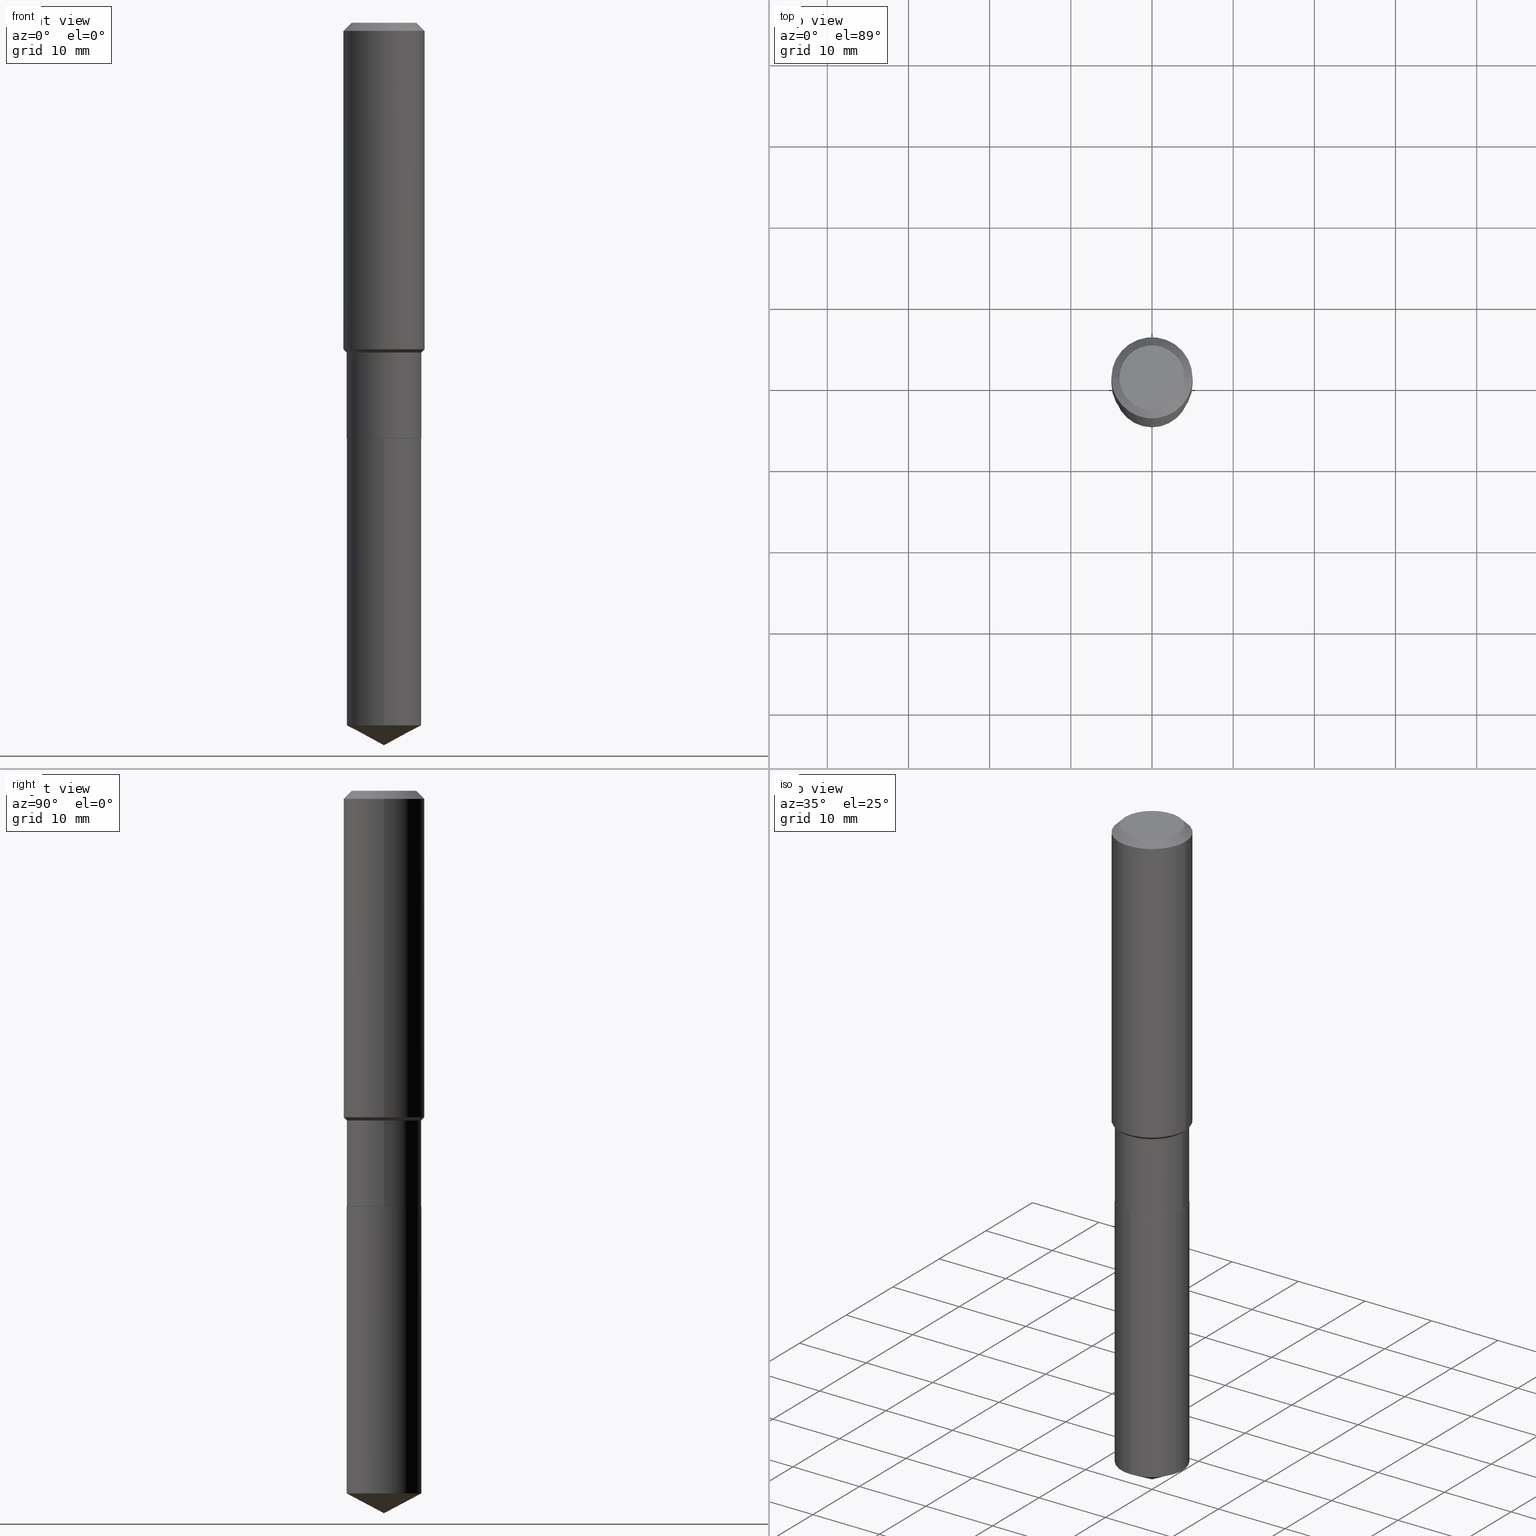
[diagram: canonical four-view strip — front | top / right | iso, engineering-drawing reading convention]
A machine part, canonical four-view strip (front | top / right | iso — engineering-drawing reading convention). The complete STEP part file that produces these views, byte-faithful:
ISO-10303-21;
HEADER;
FILE_DESCRIPTION (( 'STEP AP203' ),
    '1' );
FILE_NAME ('67662.STEP',
    '2024-04-25T08:41:14',
    ( '' ),
    ( '' ),
    'SwSTEP 2.0',
    'SolidWorks 2023',
    '' );
FILE_SCHEMA (( 'CONFIG_CONTROL_DESIGN' ));
ENDSEC;

DATA;
#1 = DATE_AND_TIME ( #35, #362 ) ;
#2 = CARTESIAN_POINT ( 'NONE',  ( 4.929331472627378640E-29, -7.037778934706127166E-15, -2.015699999999999381 ) ) ;
#3 = DIRECTION ( 'NONE',  ( 2.438088387897960049E-29, -3.491481338843145188E-15, -1.000000000000000000 ) ) ;
#4 = AXIS2_PLACEMENT_3D ( 'NONE', #91, #469, #244 ) ;
#5 = FACE_OUTER_BOUND ( 'NONE', #473, .T. ) ;
#6 = PERSON_AND_ORGANIZATION ( #70, #223 ) ;
#7 = CARTESIAN_POINT ( 'NONE',  ( 3.872277581153853552E-29, -5.528586125991177772E-15, -1.583449999999999580 ) ) ;
#8 = DIRECTION ( 'NONE',  ( 1.000000000000000000, -6.982962677686265922E-15, 0.000000000000000000 ) ) ;
#9 = DIRECTION ( 'NONE',  ( 1.000000000000000000, -6.982962677686263555E-15, 0.000000000000000000 ) ) ;
#10 = FACE_OUTER_BOUND ( 'NONE', #206, .T. ) ;
#11 = CIRCLE ( 'NONE', #209, 0.1574800000000000089 ) ;
#12 = CARTESIAN_POINT ( 'NONE',  ( 4.929331472627379200E-29, -7.037778934706127955E-15, -2.015699999999999825 ) ) ;
#13 = CIRCLE ( 'NONE', #32, 0.1810999999999999832 ) ;
#14 = DIRECTION ( 'NONE',  ( -2.445468806185136597E-29, 3.491481338843145583E-15, 1.000000000000000000 ) ) ;
#15 = ORIENTED_EDGE ( 'NONE', *, *, #239, .F. ) ;
#16 = ADVANCED_FACE ( 'NONE', ( #30 ), #321, .T. ) ;
#17 = CARTESIAN_POINT ( 'NONE',  ( 3.910793714851269512E-29, -5.583576957077957107E-15, -1.599199999999999733 ) ) ;
#18 = EDGE_CURVE ( 'NONE', #238, #369, #138, .T. ) ;
#19 = DIRECTION ( 'NONE',  ( 0.7071067811867889352, -2.468850131084785360E-15, 0.7071067811863060992 ) ) ;
#20 = DIRECTION ( 'NONE',  ( -2.445468806185136597E-29, 3.491481338843145583E-15, 1.000000000000000000 ) ) ;
#21 = CLOSED_SHELL ( 'NONE', ( #278, #341, #212, #328, #468, #346, #113, #274, #16, #203, #139, #233 ) ) ;
#22 = CIRCLE ( 'NONE', #290, 0.1968500000000000250 ) ;
#23 = PRODUCT_DEFINITION ( 'UNKNOWN', '', #192, #488 ) ;
#24 = ORIENTED_EDGE ( 'NONE', *, *, #86, .F. ) ;
#25 = VERTEX_POINT ( 'NONE', #64 ) ;
#26 = VECTOR ( 'NONE', #466, 39.37007874015748854 ) ;
#27 = ORIENTED_EDGE ( 'NONE', *, *, #287, .F. ) ;
#28 = ORIENTED_EDGE ( 'NONE', *, *, #490, .F. ) ;
#29 = EDGE_CURVE ( 'NONE', #369, #291, #222, .T. ) ;
#30 = FACE_OUTER_BOUND ( 'NONE', #366, .T. ) ;
#31 = ORIENTED_EDGE ( 'NONE', *, *, #355, .T. ) ;
#32 = AXIS2_PLACEMENT_3D ( 'NONE', #304, #343, #461 ) ;
#33 = ADVANCED_FACE ( 'NONE', ( #10 ), #265, .T. ) ;
#34 = PLANE ( 'NONE',  #334 ) ;
#35 = CALENDAR_DATE ( 2024, 25, 4 ) ;
#36 = UNCERTAINTY_MEASURE_WITH_UNIT (LENGTH_MEASURE( 1.000000000000000082E-05 ), #452, 'distance_accuracy_value', 'NONE');
#37 = CARTESIAN_POINT ( 'NONE',  ( 1.286792894461624739E-15, 0.1810999999999929888, -2.015700000000000269 ) ) ;
#38 = DIRECTION ( 'NONE',  ( 1.000000000000000000, -6.982962677686265922E-15, 0.000000000000000000 ) ) ;
#39 =( NAMED_UNIT ( * ) PLANE_ANGLE_UNIT ( ) SI_UNIT ( $, .RADIAN. ) );
#40 = LINE ( 'NONE', #314, #322 ) ;
#41 = DIRECTION ( 'NONE',  ( -2.438088387897960049E-29, 3.491481338843145188E-15, 1.000000000000000000 ) ) ;
#42 = VECTOR ( 'NONE', #425, 39.37007874015748143 ) ;
#43 = CONICAL_SURFACE ( 'NONE', #90, 0.1968500000000000250, 0.7853981633974447263 ) ;
#44 = DIRECTION ( 'NONE',  ( -2.445517173023841322E-29, 3.491412074777250618E-15, 1.000000000000000000 ) ) ;
#45 = CARTESIAN_POINT ( 'NONE',  ( 4.929331472627379200E-29, -7.037778934706127955E-15, -2.015699999999999825 ) ) ;
#46 = LINE ( 'NONE', #270, #301 ) ;
#47 = DIRECTION ( 'NONE',  ( 1.000000000000000000, -6.982962677686265922E-15, 0.000000000000000000 ) ) ;
#48 = CARTESIAN_POINT ( 'NONE',  ( -0.1806000000000000105, -5.751889526749275152E-15, -2.015699999999999381 ) ) ;
#49 = AXIS2_PLACEMENT_3D ( 'NONE', #12, #44, #228 ) ;
#50 = LINE ( 'NONE', #430, #327 ) ;
#51 = ORIENTED_EDGE ( 'NONE', *, *, #187, .T. ) ;
#52 = DIRECTION ( 'NONE',  ( -2.445468806185136597E-29, 3.491481338843145583E-15, 1.000000000000000000 ) ) ;
#53 = ORIENTED_EDGE ( 'NONE', *, *, #402, .F. ) ;
#54 = ORIENTED_EDGE ( 'NONE', *, *, #262, .T. ) ;
#55 = VERTEX_POINT ( 'NONE', #348 ) ;
#56 = APPROVAL_DATE_TIME ( #288, #404 ) ;
#57 = EDGE_CURVE ( 'NONE', #213, #336, #11, .T. ) ;
#58 = VERTEX_POINT ( 'NONE', #450 ) ;
#59 = VECTOR ( 'NONE', #205, 39.37007874015748143 ) ;
#60 = ORIENTED_EDGE ( 'NONE', *, *, #29, .T. ) ;
#61 = AXIS2_PLACEMENT_3D ( 'NONE', #2, #276, #196 ) ;
#62 = EDGE_LOOP ( 'NONE', ( #131, #482, #127, #142 ) ) ;
#63 = DATE_TIME_ROLE ( 'classification_date' ) ;
#64 = CARTESIAN_POINT ( 'NONE',  ( -0.1810999999999999832, -5.023012181095790067E-15, -1.599199999999999733 ) ) ;
#65 = CC_DESIGN_PERSON_AND_ORGANIZATION_ASSIGNMENT ( #221, #135, ( #478 ) ) ;
#66 = DIRECTION ( 'NONE',  ( -2.445468806185136597E-29, 3.491481338843145583E-15, 1.000000000000000000 ) ) ;
#67 = AXIS2_PLACEMENT_3D ( 'NONE', #174, #330, #295 ) ;
#68 = APPROVAL_PERSON_ORGANIZATION ( #299, #404, #73 ) ;
#69 = DATE_AND_TIME ( #261, #111 ) ;
#70 = PERSON ( 'UNSPECIFIED', 'UNSPECIFIED', 'UNSPECIFIED', ('UNSPECIFIED'), ('UNSPECIFIED'), ('UNSPECIFIED') ) ;
#71 = DIRECTION ( 'NONE',  ( -2.445468806185136597E-29, 3.491481338843145583E-15, 1.000000000000000000 ) ) ;
#72 = DIRECTION ( 'NONE',  ( -2.445468806185136597E-29, 3.491481338843145583E-15, 1.000000000000000000 ) ) ;
#73 = APPROVAL_ROLE ( '' ) ;
#74 = DIRECTION ( 'NONE',  ( -2.445468806185136877E-29, 3.491481338843145188E-15, 1.000000000000000000 ) ) ;
#75 = FACE_OUTER_BOUND ( 'NONE', #220, .T. ) ;
#76 = DIRECTION ( 'NONE',  ( 1.000000000000000000, 0.000000000000000000, 0.000000000000000000 ) ) ;
#77 = DIRECTION ( 'NONE',  ( 6.982962677686265922E-15, 1.000000000000000000, -3.491412074777250618E-15 ) ) ;
#78 = FACE_OUTER_BOUND ( 'NONE', #481, .T. ) ;
#79 = DATE_AND_TIME ( #154, #103 ) ;
#80 = VECTOR ( 'NONE', #226, 39.37007874015748143 ) ;
#81 = FACE_OUTER_BOUND ( 'NONE', #318, .T. ) ;
#82 = DIRECTION ( 'NONE',  ( 1.000000000000000000, -6.982962677686265922E-15, 0.000000000000000000 ) ) ;
#83 = PERSON_AND_ORGANIZATION_ROLE ( 'design_owner' ) ;
#84 = CARTESIAN_POINT ( 'NONE',  ( 0.1574800000000000089, -1.284169937930321189E-15, 3.855188123724205385E-18 ) ) ;
#85 = DIRECTION ( 'NONE',  ( 1.000000000000000000, -6.982962677686265922E-15, 4.876223630392693006E-29 ) ) ;
#86 = EDGE_CURVE ( 'NONE', #93, #88, #344, .T. ) ;
#87 = CARTESIAN_POINT ( 'NONE',  ( 4.929331472627378640E-29, -7.037778934706127166E-15, -2.015699999999999381 ) ) ;
#88 = VERTEX_POINT ( 'NONE', #345 ) ;
#89 = AXIS2_PLACEMENT_3D ( 'NONE', #315, #14, #126 ) ;
#90 = AXIS2_PLACEMENT_3D ( 'NONE', #184, #300, #347 ) ;
#91 = CARTESIAN_POINT ( 'NONE',  ( 0.000000000000000000, 0.000000000000000000, 0.000000000000000000 ) ) ;
#92 = EDGE_LOOP ( 'NONE', ( #405, #247, #412, #410 ) ) ;
#93 = VERTEX_POINT ( 'NONE', #197 ) ;
#94 = ADVANCED_FACE ( 'NONE', ( #421 ), #446, .T. ) ;
#95 = AXIS2_PLACEMENT_3D ( 'NONE', #386, #71, #116 ) ;
#96 = ORIENTED_EDGE ( 'NONE', *, *, #417, .F. ) ;
#97 = EDGE_CURVE ( 'NONE', #98, #58, #257, .T. ) ;
#98 = VERTEX_POINT ( 'NONE', #375 ) ;
#99 = EDGE_CURVE ( 'NONE', #369, #238, #121, .T. ) ;
#100 = EDGE_LOOP ( 'NONE', ( #472, #176, #96, #370 ) ) ;
#101 = DATE_AND_TIME ( #444, #393 ) ;
#102 = ORIENTED_EDGE ( 'NONE', *, *, #449, .T. ) ;
#103 = LOCAL_TIME ( 4, 41, 14.00000000000000000, #309 ) ;
#104 = DIRECTION ( 'NONE',  ( -2.445517173023841322E-29, 3.491412074777250618E-15, 1.000000000000000000 ) ) ;
#105 = CC_DESIGN_PERSON_AND_ORGANIZATION_ASSIGNMENT ( #193, #83, ( #253 ) ) ;
#106 = CARTESIAN_POINT ( 'NONE',  ( 8.333264976207015123E-29, -1.189750131459101143E-14, -3.407607421926106994 ) ) ;
#107 = APPROVAL_ROLE ( '' ) ;
#108 = COORDINATED_UNIVERSAL_TIME_OFFSET ( 5, 0, .BEHIND. ) ;
#109 = CARTESIAN_POINT ( 'NONE',  ( 4.929331472627378640E-29, -7.037778934706127166E-15, -2.015699999999999381 ) ) ;
#110 = CARTESIAN_POINT ( 'NONE',  ( -4.713871149261283817E-47, 6.730158695841841775E-33, 1.927594061857935365E-18 ) ) ;
#111 = LOCAL_TIME ( 4, 41, 14.00000000000000000, #108 ) ;
#112 = DIRECTION ( 'NONE',  ( -6.982962677686266711E-15, -1.000000000000000000, 3.016949744521549444E-15 ) ) ;
#113 = ADVANCED_FACE ( 'NONE', ( #418 ), #400, .T. ) ;
#114 = FACE_OUTER_BOUND ( 'NONE', #100, .T. ) ;
#115 = PERSON_AND_ORGANIZATION ( #70, #223 ) ;
#116 = DIRECTION ( 'NONE',  ( 1.000000000000000000, -6.982962677686266711E-15, 4.876176775795935793E-29 ) ) ;
#117 = LINE ( 'NONE', #387, #42 ) ;
#118 = FACE_OUTER_BOUND ( 'NONE', #397, .T. ) ;
#119 = DIRECTION ( 'NONE',  ( -2.445468806185136597E-29, 3.491481338843145583E-15, 1.000000000000000000 ) ) ;
#120 = EDGE_LOOP ( 'NONE', ( #437, #54, #280, #136 ) ) ;
#121 = CIRCLE ( 'NONE', #283, 0.1811000000000000110 ) ;
#122 = APPROVAL_PERSON_ORGANIZATION ( #6, #428, #487 ) ;
#123 = PLANE ( 'NONE',  #427 ) ;
#124 = CARTESIAN_POINT ( 'NONE',  ( 4.929331472627378640E-29, -7.037778934706127166E-15, -2.015699999999999381 ) ) ;
#125 = APPROVAL ( #407, 'UNSPECIFIED' ) ;
#126 = DIRECTION ( 'NONE',  ( 1.000000000000000000, -6.982962677686266711E-15, 4.876176775795935793E-29 ) ) ;
#127 = ORIENTED_EDGE ( 'NONE', *, *, #145, .T. ) ;
#128 = CARTESIAN_POINT ( 'NONE',  ( 3.872277581153853552E-29, -5.528586125991177772E-15, -1.583449999999999580 ) ) ;
#129 = FACE_OUTER_BOUND ( 'NONE', #391, .T. ) ;
#130 = CC_DESIGN_APPROVAL ( #428, ( #23 ) ) ;
#131 = ORIENTED_EDGE ( 'NONE', *, *, #163, .F. ) ;
#132 = LOCAL_TIME ( 4, 41, 14.00000000000000000, #459 ) ;
#133 = ORIENTED_EDGE ( 'NONE', *, *, #254, .T. ) ;
#134 = ORIENTED_EDGE ( 'NONE', *, *, #371, .F. ) ;
#135 = PERSON_AND_ORGANIZATION_ROLE ( 'classification_officer' ) ;
#136 = ORIENTED_EDGE ( 'NONE', *, *, #486, .F. ) ;
#137 = CALENDAR_DATE ( 2024, 25, 4 ) ;
#138 = CIRCLE ( 'NONE', #166, 0.1811000000000000110 ) ;
#139 = ADVANCED_FACE ( 'NONE', ( #75 ), #34, .F. ) ;
#140 = ORIENTED_EDGE ( 'NONE', *, *, #382, .T. ) ;
#141 = AXIS2_PLACEMENT_3D ( 'NONE', #429, #426, #188 ) ;
#142 = ORIENTED_EDGE ( 'NONE', *, *, #262, .F. ) ;
#143 = APPROVAL_STATUS ( 'not_yet_approved' ) ;
#144 = DIRECTION ( 'NONE',  ( -2.445517173023841322E-29, 3.491412074777250618E-15, 1.000000000000000000 ) ) ;
#145 = EDGE_CURVE ( 'NONE', #443, #219, #117, .T. ) ;
#146 = DATE_TIME_ROLE ( 'creation_date' ) ;
#147 = DIRECTION ( 'NONE',  ( 2.445517173023841322E-29, -3.491412074777250618E-15, -1.000000000000000000 ) ) ;
#148 = DIRECTION ( 'NONE',  ( -2.445468806185136877E-29, 3.491481338843145188E-15, 1.000000000000000000 ) ) ;
#149 = AXIS2_PLACEMENT_3D ( 'NONE', #164, #20, #439 ) ;
#150 = DIRECTION ( 'NONE',  ( 0.7071067811865474617, -2.468850131082256666E-15, 0.7071067811865474617 ) ) ;
#151 = CARTESIAN_POINT ( 'NONE',  ( -8.771145353283449829E-28, 1.252234699139273128E-13, 35.86617874015747987 ) ) ;
#152 = FACE_OUTER_BOUND ( 'NONE', #62, .T. ) ;
#153 = DIRECTION ( 'NONE',  ( 1.000000000000000000, -6.982962677686267499E-15, 0.000000000000000000 ) ) ;
#154 = CALENDAR_DATE ( 2024, 25, 4 ) ;
#155 = CARTESIAN_POINT ( 'NONE',  ( 9.627810689950954155E-31, -1.374596203102556547E-16, -0.03937000000000029365 ) ) ;
#156 = FACE_OUTER_BOUND ( 'NONE', #255, .T. ) ;
#157 = CC_DESIGN_DATE_AND_TIME_ASSIGNMENT ( #1, #146, ( #23 ) ) ;
#158 =( GEOMETRIC_REPRESENTATION_CONTEXT ( 3 ) GLOBAL_UNCERTAINTY_ASSIGNED_CONTEXT ( ( #36 ) ) GLOBAL_UNIT_ASSIGNED_CONTEXT ( ( #452, #39, #388 ) ) REPRESENTATION_CONTEXT ( 'NONE', 'WORKASPACE' ) );
#159 = CARTESIAN_POINT ( 'NONE',  ( -1.264614540928933635E-15, -0.1811000000000070609, -2.015699999999999381 ) ) ;
#160 = LINE ( 'NONE', #317, #26 ) ;
#161 = CYLINDRICAL_SURFACE ( 'NONE', #4, 0.1968500000000001082 ) ;
#162 = ORIENTED_EDGE ( 'NONE', *, *, #57, .T. ) ;
#163 = EDGE_CURVE ( 'NONE', #208, #25, #46, .T. ) ;
#164 = CARTESIAN_POINT ( 'NONE',  ( 0.000000000000000000, 0.000000000000000000, 0.000000000000000000 ) ) ;
#165 = CARTESIAN_POINT ( 'NONE',  ( -1.264614540928933635E-15, -0.1811000000000070609, -2.015699999999999381 ) ) ;
#166 = AXIS2_PLACEMENT_3D ( 'NONE', #448, #104, #259 ) ;
#167 = AXIS2_PLACEMENT_3D ( 'NONE', #109, #349, #9 ) ;
#168 = PRODUCT_RELATED_PRODUCT_CATEGORY ( 'detail', '', ( #253 ) ) ;
#169 = ORIENTED_EDGE ( 'NONE', *, *, #355, .F. ) ;
#170 = ORIENTED_EDGE ( 'NONE', *, *, #486, .T. ) ;
#171 = EDGE_CURVE ( 'NONE', #219, #25, #414, .T. ) ;
#172 = CONICAL_SURFACE ( 'NONE', #242, 0.1806000000000000105, 0.7853981633977896726 ) ;
#173 = APPROVAL_PERSON_ORGANIZATION ( #256, #125, #107 ) ;
#174 = CARTESIAN_POINT ( 'NONE',  ( 9.627810689950954155E-31, -1.374596203102556547E-16, -0.03937000000000029365 ) ) ;
#175 = ORIENTED_EDGE ( 'NONE', *, *, #245, .F. ) ;
#176 = ORIENTED_EDGE ( 'NONE', *, *, #239, .T. ) ;
#177 = AXIS2_PLACEMENT_3D ( 'NONE', #272, #119, #189 ) ;
#178 = DIRECTION ( 'NONE',  ( -2.445517173023841322E-29, 3.491412074777250618E-15, 1.000000000000000000 ) ) ;
#179 = CONICAL_SURFACE ( 'NONE', #141, 0.1810999999999999832, 0.7853981633974482790 ) ;
#180 = DIRECTION ( 'NONE',  ( 0.000000000000000000, 0.000000000000000000, 1.000000000000000000 ) ) ;
#181 = DIRECTION ( 'NONE',  ( -6.982962677686266711E-15, -1.000000000000000000, 3.016949744521549444E-15 ) ) ;
#182 = ADVANCED_FACE ( 'NONE', ( #186 ), #454, .T. ) ;
#183 = MANIFOLD_SOLID_BREP ( 'Body-Move/Copy2[2]', #21 ) ;
#184 = CARTESIAN_POINT ( 'NONE',  ( 9.627810689950954155E-31, -1.374596203102556547E-16, -0.03937000000000029365 ) ) ;
#185 = PRODUCT_DEFINITION_SHAPE ( 'NONE', 'NONE',  #23 ) ;
#186 = FACE_OUTER_BOUND ( 'NONE', #246, .T. ) ;
#187 = EDGE_CURVE ( 'NONE', #291, #285, #373, .T. ) ;
#188 = DIRECTION ( 'NONE',  ( 1.000000000000000000, -6.982962677686267499E-15, 0.000000000000000000 ) ) ;
#189 = DIRECTION ( 'NONE',  ( 1.000000000000000000, -6.982962677686267499E-15, 0.000000000000000000 ) ) ;
#190 = CLOSED_SHELL ( 'NONE', ( #297, #94, #182, #33, #292 ) ) ;
#191 = APPROVAL_DATE_TIME ( #79, #125 ) ;
#192 = PRODUCT_DEFINITION_FORMATION_WITH_SPECIFIED_SOURCE ( 'ANY', '', #253, .NOT_KNOWN. ) ;
#193 = PERSON_AND_ORGANIZATION ( #70, #223 ) ;
#194 = CYLINDRICAL_SURFACE ( 'NONE', #95, 0.1810999999999999832 ) ;
#195 = CARTESIAN_POINT ( 'NONE',  ( 9.627810689950954155E-31, -1.374596203102556547E-16, -0.03937000000000029365 ) ) ;
#196 = DIRECTION ( 'NONE',  ( 1.000000000000000000, -6.982962677686263555E-15, 0.000000000000000000 ) ) ;
#197 = CARTESIAN_POINT ( 'NONE',  ( -0.1968500000000000250, -1.434319497806958297E-15, -0.03937000000000029365 ) ) ;
#198 = LINE ( 'NONE', #351, #312 ) ;
#199 = DIRECTION ( 'NONE',  ( -2.445468806185136597E-29, 3.491481338843145583E-15, 1.000000000000000000 ) ) ;
#200 = AXIS2_PLACEMENT_3D ( 'NONE', #151, #234, #227 ) ;
#201 = DIRECTION ( 'NONE',  ( -2.445468806185136597E-29, 3.491481338843145583E-15, 1.000000000000000000 ) ) ;
#202 = ORIENTED_EDGE ( 'NONE', *, *, #97, .F. ) ;
#203 = ADVANCED_FACE ( 'NONE', ( #78 ), #298, .F. ) ;
#204 = MANIFOLD_SOLID_BREP ( 'Body-Move/Copy2[1]', #190 ) ;
#205 = DIRECTION ( 'NONE',  ( 0.7071067811865450192, -7.319954787623246579E-15, -0.7071067811865500152 ) ) ;
#206 = EDGE_LOOP ( 'NONE', ( #294, #432, #31, #333 ) ) ;
#207 = CC_DESIGN_PERSON_AND_ORGANIZATION_ASSIGNMENT ( #115, #376, ( #23 ) ) ;
#208 = VERTEX_POINT ( 'NONE', #229 ) ;
#209 = AXIS2_PLACEMENT_3D ( 'NONE', #308, #385, #338 ) ;
#210 = AXIS2_PLACEMENT_3D ( 'NONE', #124, #237, #279 ) ;
#211 = ORIENTED_EDGE ( 'NONE', *, *, #250, .T. ) ;
#212 = ADVANCED_FACE ( 'NONE', ( #114 ), #381, .T. ) ;
#213 = VERTEX_POINT ( 'NONE', #311 ) ;
#214 = PERSON_AND_ORGANIZATION_ROLE ( 'design_supplier' ) ;
#215 = ORIENTED_EDGE ( 'NONE', *, *, #171, .F. ) ;
#216 = PERSON_AND_ORGANIZATION ( #70, #223 ) ;
#217 = APPLICATION_CONTEXT ( 'configuration controlled 3d designs of mechanical parts and assemblies' ) ;
#218 = AXIS2_PLACEMENT_3D ( 'NONE', #377, #339, #112 ) ;
#219 = VERTEX_POINT ( 'NONE', #392 ) ;
#220 = EDGE_LOOP ( 'NONE', ( #53, #134 ) ) ;
#221 = PERSON_AND_ORGANIZATION ( #70, #223 ) ;
#222 = LINE ( 'NONE', #372, #289 ) ;
#223 = ORGANIZATION ( 'UNSPECIFIED', 'UNSPECIFIED', '' ) ;
#224 = DIRECTION ( 'NONE',  ( -2.445517173023841322E-29, 3.491412074777250618E-15, 1.000000000000000000 ) ) ;
#225 = APPROVAL_DATE_TIME ( #69, #428 ) ;
#226 = DIRECTION ( 'NONE',  ( -2.445517173023841322E-29, 3.491412074777250618E-15, 1.000000000000000000 ) ) ;
#227 = DIRECTION ( 'NONE',  ( -6.982962677686267499E-15, -1.000000000000000000, 3.541896320645546669E-15 ) ) ;
#228 = DIRECTION ( 'NONE',  ( -6.982962677686266711E-15, -1.000000000000000000, 3.016949744521549444E-15 ) ) ;
#229 = CARTESIAN_POINT ( 'NONE',  ( -0.1810999999999999832, -5.023012181095790067E-15, -2.015199999999999658 ) ) ;
#230 = LENGTH_MEASURE_WITH_UNIT ( LENGTH_MEASURE( 0.02539999999999999897 ), #415 );
#231 = CARTESIAN_POINT ( 'NONE',  ( 8.568847622558238161E-29, -1.223355876881201035E-14, -3.503899999999999793 ) ) ;
#232 = CIRCLE ( 'NONE', #243, 0.1810999999999999832 ) ;
#233 = ADVANCED_FACE ( 'NONE', ( #129 ), #172, .T. ) ;
#234 = DIRECTION ( 'NONE',  ( -2.445517173023841322E-29, 3.491412074777250618E-15, 1.000000000000000000 ) ) ;
#235 = CARTESIAN_POINT ( 'NONE',  ( 0.000000000000000000, 0.000000000000000000, 0.000000000000000000 ) ) ;
#236 = LINE ( 'NONE', #159, #80 ) ;
#237 = DIRECTION ( 'NONE',  ( -2.445468806185136597E-29, 3.491481338843145583E-15, 1.000000000000000000 ) ) ;
#238 = VERTEX_POINT ( 'NONE', #282 ) ;
#239 = EDGE_CURVE ( 'NONE', #58, #93, #50, .T. ) ;
#240 = DIRECTION ( 'NONE',  ( 1.000000000000000000, -6.982962677686267499E-15, 0.000000000000000000 ) ) ;
#241 = ORIENTED_EDGE ( 'NONE', *, *, #417, .T. ) ;
#242 = AXIS2_PLACEMENT_3D ( 'NONE', #87, #52, #435 ) ;
#243 = AXIS2_PLACEMENT_3D ( 'NONE', #17, #199, #240 ) ;
#244 = DIRECTION ( 'NONE',  ( 1.000000000000000000, -6.982962677686266711E-15, 4.876176775795935793E-29 ) ) ;
#245 = EDGE_CURVE ( 'NONE', #293, #238, #160, .T. ) ;
#246 = EDGE_LOOP ( 'NONE', ( #479, #363, #286 ) ) ;
#247 = ORIENTED_EDGE ( 'NONE', *, *, #451, .T. ) ;
#248 = AXIS2_PLACEMENT_3D ( 'NONE', #413, #144, #458 ) ;
#249 = VECTOR ( 'NONE', #19, 39.37007874015748143 ) ;
#250 = EDGE_CURVE ( 'NONE', #336, #88, #319, .T. ) ;
#251 = VERTEX_POINT ( 'NONE', #48 ) ;
#252 = ORIENTED_EDGE ( 'NONE', *, *, #434, .T. ) ;
#253 = PRODUCT ( '67662', '67662', '', ( #306 ) ) ;
#254 = EDGE_CURVE ( 'NONE', #336, #213, #273, .T. ) ;
#255 = EDGE_LOOP ( 'NONE', ( #15, #170, #252, #24 ) ) ;
#256 = PERSON_AND_ORGANIZATION ( #70, #223 ) ;
#257 = CIRCLE ( 'NONE', #483, 0.1968500000000002192 ) ;
#258 = ORIENTED_EDGE ( 'NONE', *, *, #438, .T. ) ;
#259 = DIRECTION ( 'NONE',  ( -6.982962677686266711E-15, -1.000000000000000000, 3.016949744521549444E-15 ) ) ;
#260 = DIRECTION ( 'NONE',  ( -2.445468806185136597E-29, 3.491481338843145583E-15, 1.000000000000000000 ) ) ;
#261 = CALENDAR_DATE ( 2024, 25, 4 ) ;
#262 = EDGE_CURVE ( 'NONE', #25, #219, #232, .T. ) ;
#263 = DIRECTION ( 'NONE',  ( 6.273719981627770810E-15, 0.8829475928589304301, 0.4694715627858842000 ) ) ;
#264 = AXIS2_PLACEMENT_3D ( 'NONE', #356, #201, #85 ) ;
#265 = CYLINDRICAL_SURFACE ( 'NONE', #433, 0.1811000000000000110 ) ;
#266 = APPLICATION_PROTOCOL_DEFINITION ( 'international standard', 'config_control_design', 1994, #217 ) ;
#267 = LINE ( 'NONE', #420, #329 ) ;
#268 = CARTESIAN_POINT ( 'NONE',  ( 4.929331472627379200E-29, -7.037778934706127955E-15, -2.015699999999999825 ) ) ;
#269 = CYLINDRICAL_SURFACE ( 'NONE', #49, 0.1811000000000000110 ) ;
#270 = CARTESIAN_POINT ( 'NONE',  ( -0.1810999999999999832, 1.286792894461541317E-15, -8.908191448451633036E-30 ) ) ;
#271 = CARTESIAN_POINT ( 'NONE',  ( -0.1810999999999999832, -4.296784062616415395E-15, -1.599199999999999733 ) ) ;
#272 = CARTESIAN_POINT ( 'NONE',  ( 3.910793714851269512E-29, -5.583576957077957107E-15, -1.599199999999999733 ) ) ;
#273 = CIRCLE ( 'NONE', #264, 0.1574800000000000089 ) ;
#274 = ADVANCED_FACE ( 'NONE', ( #156 ), #161, .T. ) ;
#275 = CARTESIAN_POINT ( 'NONE',  ( 4.928108738224286960E-29, -7.036033194036706451E-15, -2.015199999999999658 ) ) ;
#276 = DIRECTION ( 'NONE',  ( -2.445468806185136597E-29, 3.491481338843145583E-15, 1.000000000000000000 ) ) ;
#277 = DIRECTION ( 'NONE',  ( -0.7071067811865450192, 2.468850131082230634E-15, -0.7071067811865500152 ) ) ;
#278 = ADVANCED_FACE ( 'NONE', ( #465 ), #456, .T. ) ;
#279 = DIRECTION ( 'NONE',  ( 1.000000000000000000, -6.982962677686263555E-15, 0.000000000000000000 ) ) ;
#280 = ORIENTED_EDGE ( 'NONE', *, *, #379, .T. ) ;
#281 = EDGE_CURVE ( 'NONE', #55, #443, #358, .T. ) ;
#282 = CARTESIAN_POINT ( 'NONE',  ( -1.264614540928899714E-15, -0.1811000000000118904, -3.407607421926106106 ) ) ;
#283 = AXIS2_PLACEMENT_3D ( 'NONE', #106, #305, #350 ) ;
#284 = VECTOR ( 'NONE', #307, 39.37007874015748854 ) ;
#285 = VERTEX_POINT ( 'NONE', #165 ) ;
#286 = ORIENTED_EDGE ( 'NONE', *, *, #99, .F. ) ;
#287 = EDGE_CURVE ( 'NONE', #213, #93, #431, .T. ) ;
#288 = DATE_AND_TIME ( #137, #132 ) ;
#289 = VECTOR ( 'NONE', #178, 39.37007874015748143 ) ;
#290 = AXIS2_PLACEMENT_3D ( 'NONE', #155, #457, #47 ) ;
#291 = VERTEX_POINT ( 'NONE', #37 ) ;
#292 = ADVANCED_FACE ( 'NONE', ( #424 ), #123, .F. ) ;
#293 = VERTEX_POINT ( 'NONE', #231 ) ;
#294 = ORIENTED_EDGE ( 'NONE', *, *, #29, .F. ) ;
#295 = DIRECTION ( 'NONE',  ( -1.000000000000000000, 6.982962677686265922E-15, 0.000000000000000000 ) ) ;
#296 = DIRECTION ( 'NONE',  ( -2.445517173023841322E-29, 3.491412074777250618E-15, 1.000000000000000000 ) ) ;
#297 = ADVANCED_FACE ( 'NONE', ( #383 ), #269, .T. ) ;
#298 = PLANE ( 'NONE',  #476 ) ;
#299 = PERSON_AND_ORGANIZATION ( #70, #223 ) ;
#300 = DIRECTION ( 'NONE',  ( 2.445468806185136597E-29, -3.491481338843145583E-15, -1.000000000000000000 ) ) ;
#301 = VECTOR ( 'NONE', #148, 39.37007874015748143 ) ;
#302 = DIRECTION ( 'NONE',  ( -6.982962677686266711E-15, -1.000000000000000000, 3.016949744521549444E-15 ) ) ;
#303 = COORDINATED_UNIVERSAL_TIME_OFFSET ( 5, 0, .BEHIND. ) ;
#304 = CARTESIAN_POINT ( 'NONE',  ( 4.928108738224286960E-29, -7.036033194036706451E-15, -2.015199999999999658 ) ) ;
#305 = DIRECTION ( 'NONE',  ( -2.445517173023841322E-29, 3.491412074777250618E-15, 1.000000000000000000 ) ) ;
#306 = MECHANICAL_CONTEXT ( 'NONE', #217, 'mechanical' ) ;
#307 = DIRECTION ( 'NONE',  ( -0.7071067811865474617, 7.493145998870352582E-15, 0.7071067811865474617 ) ) ;
#308 = CARTESIAN_POINT ( 'NONE',  ( -9.427742298522567634E-47, 1.346031739168368355E-32, 3.855188123715870730E-18 ) ) ;
#309 = COORDINATED_UNIVERSAL_TIME_OFFSET ( 5, 0, .BEHIND. ) ;
#310 = LINE ( 'NONE', #464, #368 ) ;
#311 = CARTESIAN_POINT ( 'NONE',  ( -0.1574800000000000089, 1.168406772637159618E-15, 3.855188123707939751E-18 ) ) ;
#312 = VECTOR ( 'NONE', #263, 39.37007874015748143 ) ;
#313 = ADVANCED_BREP_SHAPE_REPRESENTATION ( '67662', ( #204, #183, #441 ), #158 ) ;
#314 = CARTESIAN_POINT ( 'NONE',  ( 0.1810999999999999832, -6.848191498006940046E-15, -1.599199999999999733 ) ) ;
#315 = CARTESIAN_POINT ( 'NONE',  ( 0.000000000000000000, 0.000000000000000000, 0.000000000000000000 ) ) ;
#316 = CC_DESIGN_PERSON_AND_ORGANIZATION_ASSIGNMENT ( #216, #214, ( #192 ) ) ;
#317 = CARTESIAN_POINT ( 'NONE',  ( 8.568652636484683700E-29, -1.223383799996725791E-14, -3.503899999999999793 ) ) ;
#318 = EDGE_LOOP ( 'NONE', ( #324, #211, #241, #27 ) ) ;
#319 = LINE ( 'NONE', #390, #59 ) ;
#320 = ORIENTED_EDGE ( 'NONE', *, *, #331, .T. ) ;
#321 = CONICAL_SURFACE ( 'NONE', #67, 0.1968500000000000250, 0.7853981633974447263 ) ;
#322 = VECTOR ( 'NONE', #150, 39.37007874015748854 ) ;
#323 = CC_DESIGN_SECURITY_CLASSIFICATION ( #478, ( #192 ) ) ;
#324 = ORIENTED_EDGE ( 'NONE', *, *, #254, .F. ) ;
#325 = ORIENTED_EDGE ( 'NONE', *, *, #250, .F. ) ;
#326 = APPLICATION_CONTEXT ( 'configuration controlled 3d designs of mechanical parts and assemblies' ) ;
#327 = VECTOR ( 'NONE', #396, 39.37007874015748143 ) ;
#328 = ADVANCED_FACE ( 'NONE', ( #118 ), #179, .T. ) ;
#329 = VECTOR ( 'NONE', #380, 39.37007874015748143 ) ;
#330 = DIRECTION ( 'NONE',  ( 2.445468806185136597E-29, -3.491481338843145583E-15, -1.000000000000000000 ) ) ;
#331 = EDGE_CURVE ( 'NONE', #25, #58, #460, .T. ) ;
#332 = ORIENTED_EDGE ( 'NONE', *, *, #18, .F. ) ;
#333 = ORIENTED_EDGE ( 'NONE', *, *, #187, .F. ) ;
#334 = AXIS2_PLACEMENT_3D ( 'NONE', #489, #41, #462 ) ;
#335 = CC_DESIGN_PERSON_AND_ORGANIZATION_ASSIGNMENT ( #365, #480, ( #192 ) ) ;
#336 = VERTEX_POINT ( 'NONE', #84 ) ;
#337 = APPLICATION_PROTOCOL_DEFINITION ( 'international standard', 'config_control_design', 1994, #326 ) ;
#338 = DIRECTION ( 'NONE',  ( 1.000000000000000000, -6.982962677686265922E-15, 4.876223630392693006E-29 ) ) ;
#339 = DIRECTION ( 'NONE',  ( -2.445517173023841322E-29, 3.491412074777250618E-15, 1.000000000000000000 ) ) ;
#340 = DIRECTION ( 'NONE',  ( -1.000000000000000000, 6.982962677686265922E-15, -4.876176775795935793E-29 ) ) ;
#341 = ADVANCED_FACE ( 'NONE', ( #81 ), #43, .T. ) ;
#342 = CC_DESIGN_APPROVAL ( #125, ( #478 ) ) ;
#343 = DIRECTION ( 'NONE',  ( -2.445468806185136597E-29, 3.491481338843145583E-15, 1.000000000000000000 ) ) ;
#344 = CIRCLE ( 'NONE', #398, 0.1968500000000000250 ) ;
#345 = CARTESIAN_POINT ( 'NONE',  ( 0.1968500000000000250, -1.512055823412797189E-15, -0.03937000000000029365 ) ) ;
#346 = ADVANCED_FACE ( 'NONE', ( #152 ), #194, .T. ) ;
#347 = DIRECTION ( 'NONE',  ( -1.000000000000000000, 6.982962677686265922E-15, 0.000000000000000000 ) ) ;
#348 = CARTESIAN_POINT ( 'NONE',  ( 0.1806000000000000105, -8.298901994296266309E-15, -2.015699999999999381 ) ) ;
#349 = DIRECTION ( 'NONE',  ( -2.445468806185136597E-29, 3.491481338843145583E-15, 1.000000000000000000 ) ) ;
#350 = DIRECTION ( 'NONE',  ( -6.982962677686266711E-15, -1.000000000000000000, 3.016949744521549444E-15 ) ) ;
#351 = CARTESIAN_POINT ( 'NONE',  ( 8.568849332355941581E-29, -1.223355876881200719E-14, -3.503899999999999793 ) ) ;
#352 = AXIS2_PLACEMENT_3D ( 'NONE', #453, #260, #153 ) ;
#353 = CARTESIAN_POINT ( 'NONE',  ( 0.1806000000000000105, -8.298901994296266309E-15, -2.015699999999999381 ) ) ;
#354 = AXIS2_PLACEMENT_3D ( 'NONE', #128, #395, #8 ) ;
#355 = EDGE_CURVE ( 'NONE', #238, #285, #236, .T. ) ;
#356 = CARTESIAN_POINT ( 'NONE',  ( -9.427742298522567634E-47, 1.346031739168368355E-32, 3.855188123715870730E-18 ) ) ;
#357 = ORIENTED_EDGE ( 'NONE', *, *, #281, .T. ) ;
#358 = LINE ( 'NONE', #353, #249 ) ;
#359 = ORIENTED_EDGE ( 'NONE', *, *, #18, .T. ) ;
#360 = CYLINDRICAL_SURFACE ( 'NONE', #149, 0.1810999999999999832 ) ;
#361 = EDGE_LOOP ( 'NONE', ( #175, #258, #332 ) ) ;
#362 = LOCAL_TIME ( 4, 41, 14.00000000000000000, #303 ) ;
#363 = ORIENTED_EDGE ( 'NONE', *, *, #245, .T. ) ;
#364 = ORIENTED_EDGE ( 'NONE', *, *, #171, .T. ) ;
#365 = PERSON_AND_ORGANIZATION ( #70, #223 ) ;
#366 = EDGE_LOOP ( 'NONE', ( #325, #406, #485, #474 ) ) ;
#367 = SECURITY_CLASSIFICATION_LEVEL ( 'unclassified' ) ;
#368 = VECTOR ( 'NONE', #74, 39.37007874015748143 ) ;
#369 = VERTEX_POINT ( 'NONE', #389 ) ;
#370 = ORIENTED_EDGE ( 'NONE', *, *, #434, .F. ) ;
#371 = EDGE_CURVE ( 'NONE', #251, #55, #447, .T. ) ;
#372 = CARTESIAN_POINT ( 'NONE',  ( 1.286792894461590621E-15, 0.1810999999999929888, -2.015700000000000269 ) ) ;
#373 = CIRCLE ( 'NONE', #463, 0.1811000000000000110 ) ;
#374 = CIRCLE ( 'NONE', #471, 0.1810999999999999832 ) ;
#375 = CARTESIAN_POINT ( 'NONE',  ( 0.1968500000000002192, -6.903182329093720169E-15, -1.583449999999999580 ) ) ;
#376 = PERSON_AND_ORGANIZATION_ROLE ( 'creator' ) ;
#377 = CARTESIAN_POINT ( 'NONE',  ( 4.929331472627379200E-29, -7.037778934706127955E-15, -2.015699999999999825 ) ) ;
#378 = CARTESIAN_POINT ( 'NONE',  ( 4.929331472627379200E-29, -7.037778934706127955E-15, -2.015699999999999825 ) ) ;
#379 = EDGE_CURVE ( 'NONE', #219, #98, #40, .T. ) ;
#380 = DIRECTION ( 'NONE',  ( -0.7071067811867889352, 7.493145998871226640E-15, 0.7071067811863060992 ) ) ;
#381 = CYLINDRICAL_SURFACE ( 'NONE', #89, 0.1968500000000001082 ) ;
#382 = EDGE_CURVE ( 'NONE', #443, #208, #13, .T. ) ;
#383 = FACE_OUTER_BOUND ( 'NONE', #442, .T. ) ;
#384 = CIRCLE ( 'NONE', #218, 0.1811000000000000110 ) ;
#385 = DIRECTION ( 'NONE',  ( -2.445468806185136597E-29, 3.491481338843145583E-15, 1.000000000000000000 ) ) ;
#386 = CARTESIAN_POINT ( 'NONE',  ( 0.000000000000000000, 0.000000000000000000, 0.000000000000000000 ) ) ;
#387 = CARTESIAN_POINT ( 'NONE',  ( 0.1810999999999999832, -1.264614540928982742E-15, 8.830756140966438813E-30 ) ) ;
#388 =( NAMED_UNIT ( * ) SI_UNIT ( $, .STERADIAN. ) SOLID_ANGLE_UNIT ( ) );
#389 = CARTESIAN_POINT ( 'NONE',  ( 1.286792894461624542E-15, 0.1810999999999881316, -3.407607421926107438 ) ) ;
#390 = CARTESIAN_POINT ( 'NONE',  ( 0.1968500000000000250, -1.487948651171581601E-15, -0.03937000000000029365 ) ) ;
#391 = EDGE_LOOP ( 'NONE', ( #440, #399, #357, #28 ) ) ;
#392 = CARTESIAN_POINT ( 'NONE',  ( 0.1810999999999999832, -6.848191498006940046E-15, -1.599199999999999733 ) ) ;
#393 = LOCAL_TIME ( 4, 41, 14.00000000000000000, #411 ) ;
#394 = ORIENTED_EDGE ( 'NONE', *, *, #449, .F. ) ;
#395 = DIRECTION ( 'NONE',  ( -2.445468806185136597E-29, 3.491481338843145583E-15, 1.000000000000000000 ) ) ;
#396 = DIRECTION ( 'NONE',  ( -2.445468806185136877E-29, 3.491481338843145188E-15, 1.000000000000000000 ) ) ;
#397 = EDGE_LOOP ( 'NONE', ( #364, #320, #202, #467 ) ) ;
#398 = AXIS2_PLACEMENT_3D ( 'NONE', #195, #72, #82 ) ;
#399 = ORIENTED_EDGE ( 'NONE', *, *, #371, .T. ) ;
#400 = CONICAL_SURFACE ( 'NONE', #352, 0.1810999999999999832, 0.7853981633974482790 ) ;
#401 = CC_DESIGN_APPROVAL ( #404, ( #192 ) ) ;
#402 = EDGE_CURVE ( 'NONE', #55, #251, #408, .T. ) ;
#403 = ORIENTED_EDGE ( 'NONE', *, *, #145, .F. ) ;
#404 = APPROVAL ( #419, 'UNSPECIFIED' ) ;
#405 = ORIENTED_EDGE ( 'NONE', *, *, #402, .T. ) ;
#406 = ORIENTED_EDGE ( 'NONE', *, *, #57, .F. ) ;
#407 = APPROVAL_STATUS ( 'not_yet_approved' ) ;
#408 = CIRCLE ( 'NONE', #167, 0.1806000000000000105 ) ;
#409 = DIMENSIONAL_EXPONENTS ( 1.000000000000000000, 0.000000000000000000, 0.000000000000000000, 0.000000000000000000, 0.000000000000000000, 0.000000000000000000, 0.000000000000000000 ) ;
#410 = ORIENTED_EDGE ( 'NONE', *, *, #281, .F. ) ;
#411 = COORDINATED_UNIVERSAL_TIME_OFFSET ( 5, 0, .BEHIND. ) ;
#412 = ORIENTED_EDGE ( 'NONE', *, *, #382, .F. ) ;
#413 = CARTESIAN_POINT ( 'NONE',  ( -8.771145353283449829E-28, 1.252234699139273128E-13, 35.86617874015747987 ) ) ;
#414 = CIRCLE ( 'NONE', #177, 0.1810999999999999832 ) ;
#415 =( LENGTH_UNIT ( ) NAMED_UNIT ( * ) SI_UNIT ( $, .METRE. ) );
#416 = CARTESIAN_POINT ( 'NONE',  ( 0.1810999999999999832, -8.300647734965688602E-15, -2.015199999999999658 ) ) ;
#417 = EDGE_CURVE ( 'NONE', #88, #93, #22, .T. ) ;
#418 = FACE_OUTER_BOUND ( 'NONE', #120, .T. ) ;
#419 = APPROVAL_STATUS ( 'not_yet_approved' ) ;
#420 = CARTESIAN_POINT ( 'NONE',  ( -0.1806000000000000105, -5.754538753923386353E-15, -2.015699999999999381 ) ) ;
#421 = FACE_OUTER_BOUND ( 'NONE', #361, .T. ) ;
#422 = SHAPE_DEFINITION_REPRESENTATION ( #185, #313 ) ;
#423 = DIRECTION ( 'NONE',  ( 1.000000000000000000, -6.982962677686267499E-15, 0.000000000000000000 ) ) ;
#424 = FACE_OUTER_BOUND ( 'NONE', #477, .T. ) ;
#425 = DIRECTION ( 'NONE',  ( -2.445468806185136877E-29, 3.491481338843145188E-15, 1.000000000000000000 ) ) ;
#426 = DIRECTION ( 'NONE',  ( -2.445468806185136597E-29, 3.491481338843145583E-15, 1.000000000000000000 ) ) ;
#427 = AXIS2_PLACEMENT_3D ( 'NONE', #45, #147, #77 ) ;
#428 = APPROVAL ( #143, 'UNSPECIFIED' ) ;
#429 = CARTESIAN_POINT ( 'NONE',  ( 3.910793714851269512E-29, -5.583576957077957107E-15, -1.599199999999999733 ) ) ;
#430 = CARTESIAN_POINT ( 'NONE',  ( -0.1968500000000001082, 1.398703375343757985E-15, -9.682923725166787881E-30 ) ) ;
#431 = LINE ( 'NONE', #470, #484 ) ;
#432 = ORIENTED_EDGE ( 'NONE', *, *, #99, .T. ) ;
#433 = AXIS2_PLACEMENT_3D ( 'NONE', #268, #296, #302 ) ;
#434 = EDGE_CURVE ( 'NONE', #98, #88, #310, .T. ) ;
#435 = DIRECTION ( 'NONE',  ( 1.000000000000000000, -6.982962677686263555E-15, 0.000000000000000000 ) ) ;
#436 = CIRCLE ( 'NONE', #354, 0.1968500000000002192 ) ;
#437 = ORIENTED_EDGE ( 'NONE', *, *, #331, .F. ) ;
#438 = EDGE_CURVE ( 'NONE', #293, #369, #198, .T. ) ;
#439 = DIRECTION ( 'NONE',  ( 1.000000000000000000, -6.982962677686266711E-15, 4.876176775795935793E-29 ) ) ;
#440 = ORIENTED_EDGE ( 'NONE', *, *, #451, .F. ) ;
#441 = AXIS2_PLACEMENT_3D ( 'NONE', #235, #180, #76 ) ;
#442 = EDGE_LOOP ( 'NONE', ( #359, #60, #394, #169 ) ) ;
#443 = VERTEX_POINT ( 'NONE', #416 ) ;
#444 = CALENDAR_DATE ( 2024, 25, 4 ) ;
#445 = ORIENTED_EDGE ( 'NONE', *, *, #163, .T. ) ;
#446 = CONICAL_SURFACE ( 'NONE', #200, 74.04434902938383800, 1.082104136236488268 ) ;
#447 = CIRCLE ( 'NONE', #61, 0.1806000000000000105 ) ;
#448 = CARTESIAN_POINT ( 'NONE',  ( 8.333264976207015123E-29, -1.189750131459101143E-14, -3.407607421926106994 ) ) ;
#449 = EDGE_CURVE ( 'NONE', #285, #291, #384, .T. ) ;
#450 = CARTESIAN_POINT ( 'NONE',  ( -0.1968500000000002192, -4.129882750647417618E-15, -1.583449999999999580 ) ) ;
#451 = EDGE_CURVE ( 'NONE', #251, #208, #267, .T. ) ;
#452 =( CONVERSION_BASED_UNIT ( 'INCH', #230 ) LENGTH_UNIT ( ) NAMED_UNIT ( #409 ) );
#453 = CARTESIAN_POINT ( 'NONE',  ( 3.910793714851269512E-29, -5.583576957077957107E-15, -1.599199999999999733 ) ) ;
#454 = CONICAL_SURFACE ( 'NONE', #248, 74.04434902938383800, 1.082104136236488268 ) ;
#455 = DIRECTION ( 'NONE',  ( -2.445468806185136597E-29, 3.491481338843145583E-15, 1.000000000000000000 ) ) ;
#456 = CONICAL_SURFACE ( 'NONE', #210, 0.1806000000000000105, 0.7853981633977896726 ) ;
#457 = DIRECTION ( 'NONE',  ( -2.445468806185136597E-29, 3.491481338843145583E-15, 1.000000000000000000 ) ) ;
#458 = DIRECTION ( 'NONE',  ( -6.982962677686267499E-15, -1.000000000000000000, 3.541896320645546669E-15 ) ) ;
#459 = COORDINATED_UNIVERSAL_TIME_OFFSET ( 5, 0, .BEHIND. ) ;
#460 = LINE ( 'NONE', #271, #284 ) ;
#461 = DIRECTION ( 'NONE',  ( 1.000000000000000000, -6.982962677686267499E-15, 0.000000000000000000 ) ) ;
#462 = DIRECTION ( 'NONE',  ( 1.000000000000000000, -6.982962677686265922E-15, 4.876176775795935793E-29 ) ) ;
#463 = AXIS2_PLACEMENT_3D ( 'NONE', #378, #224, #181 ) ;
#464 = CARTESIAN_POINT ( 'NONE',  ( 0.1968500000000001082, -1.374596203102542397E-15, 9.598753983154305062E-30 ) ) ;
#465 = FACE_OUTER_BOUND ( 'NONE', #92, .T. ) ;
#466 = DIRECTION ( 'NONE',  ( -6.165590087286839185E-15, -0.8829475928589269884, 0.4694715627858903617 ) ) ;
#467 = ORIENTED_EDGE ( 'NONE', *, *, #379, .F. ) ;
#468 = ADVANCED_FACE ( 'NONE', ( #5 ), #360, .T. ) ;
#469 = DIRECTION ( 'NONE',  ( -2.445468806185136597E-29, 3.491481338843145583E-15, 1.000000000000000000 ) ) ;
#470 = CARTESIAN_POINT ( 'NONE',  ( -0.1968500000000000250, 1.237136582792286225E-15, -0.03937000000000029365 ) ) ;
#471 = AXIS2_PLACEMENT_3D ( 'NONE', #275, #455, #423 ) ;
#472 = ORIENTED_EDGE ( 'NONE', *, *, #97, .T. ) ;
#473 = EDGE_LOOP ( 'NONE', ( #140, #445, #215, #403 ) ) ;
#474 = ORIENTED_EDGE ( 'NONE', *, *, #86, .T. ) ;
#475 = CC_DESIGN_DATE_AND_TIME_ASSIGNMENT ( #101, #63, ( #478 ) ) ;
#476 = AXIS2_PLACEMENT_3D ( 'NONE', #110, #3, #340 ) ;
#477 = EDGE_LOOP ( 'NONE', ( #102, #51 ) ) ;
#478 = SECURITY_CLASSIFICATION ( '', '', #367 ) ;
#479 = ORIENTED_EDGE ( 'NONE', *, *, #438, .F. ) ;
#480 = PERSON_AND_ORGANIZATION_ROLE ( 'creator' ) ;
#481 = EDGE_LOOP ( 'NONE', ( #162, #133 ) ) ;
#482 = ORIENTED_EDGE ( 'NONE', *, *, #490, .T. ) ;
#483 = AXIS2_PLACEMENT_3D ( 'NONE', #7, #66, #38 ) ;
#484 = VECTOR ( 'NONE', #277, 39.37007874015748143 ) ;
#485 = ORIENTED_EDGE ( 'NONE', *, *, #287, .T. ) ;
#486 = EDGE_CURVE ( 'NONE', #58, #98, #436, .T. ) ;
#487 = APPROVAL_ROLE ( '' ) ;
#488 = DESIGN_CONTEXT ( 'detailed design', #326, 'design' ) ;
#489 = CARTESIAN_POINT ( 'NONE',  ( 7.058472365498860368E-29, -3.988727992940315729E-15, -2.015699999999999381 ) ) ;
#490 = EDGE_CURVE ( 'NONE', #208, #443, #374, .T. ) ;
ENDSEC;
END-ISO-10303-21;
